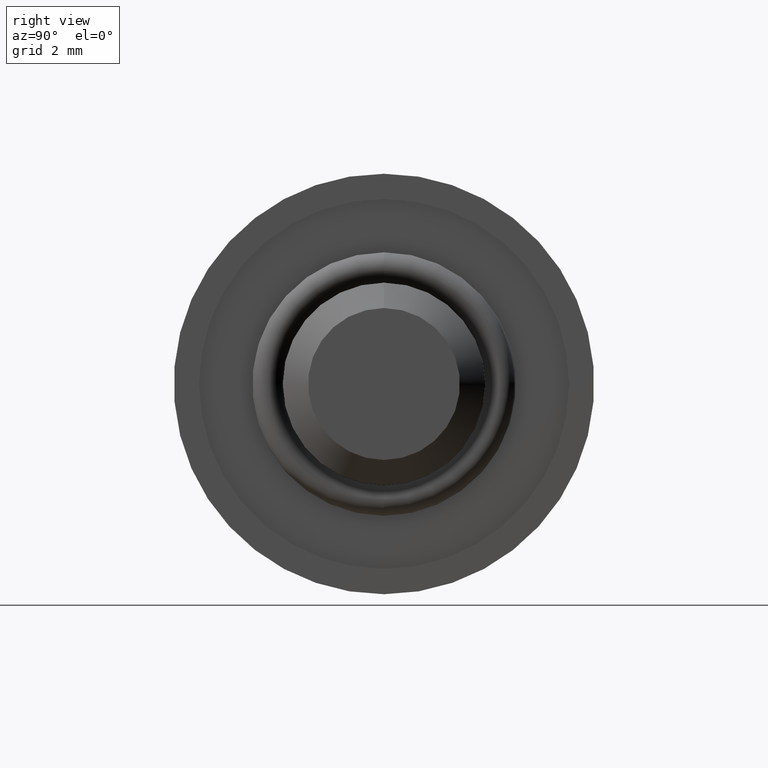
[diagram: clean part render]
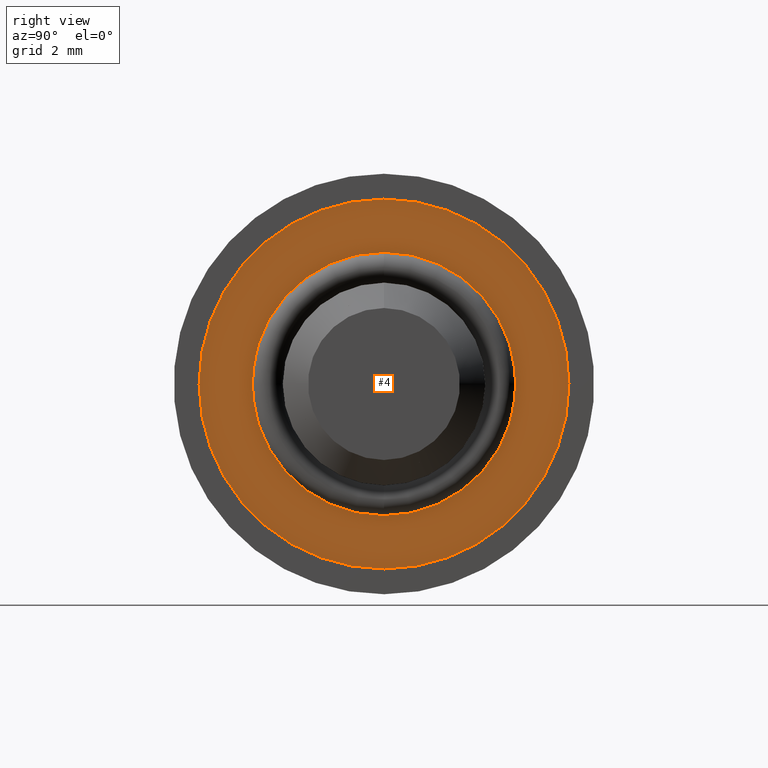
[diagram: same view with one face highlighted and labeled with its STEP entity id]
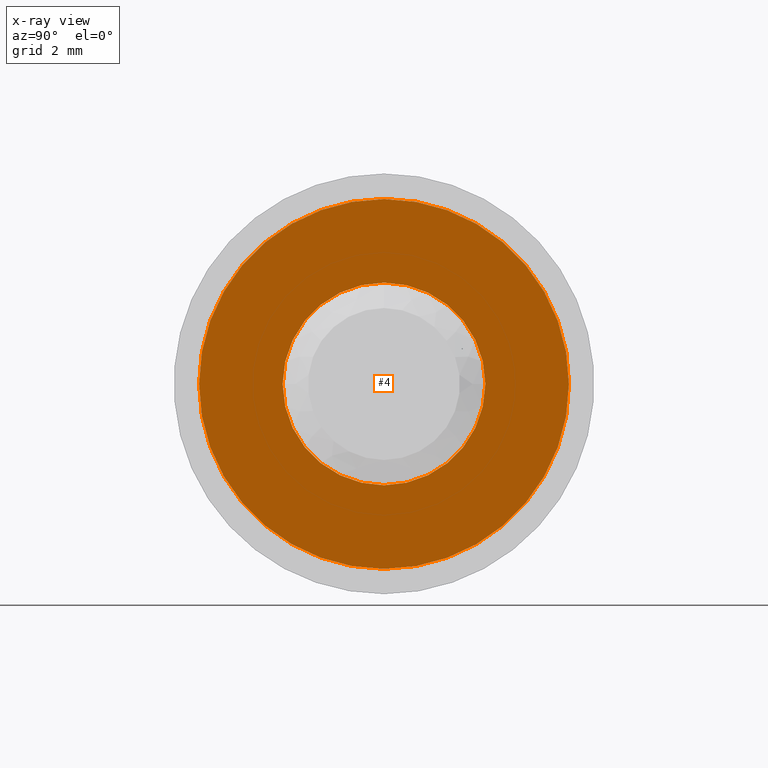
[diagram: x-ray of the same camera — body ghosted, the highlighted face saturated]
A machine part, right view. The second image highlights one B-rep face of the part: STEP entity #4.
The next image is the same camera in x-ray: the body ghosted, the highlighted face saturated — about 0% of this face is hidden behind the body in this view.
In plain terms, the highlighted planar face has unit normal (1, 0, 0).
Its self-contained STEP definition (entity closure, byte-faithful):
#4 = ADVANCED_FACE ( 'NONE', ( #805, #393 ), #191, .T. ) ;
#97 = VERTEX_POINT ( 'NONE', #989 ) ;
#167 = CARTESIAN_POINT ( 'NONE',  ( -0.2500000000000000000, 0.0000000000000000000, -3.649999999999999900 ) ) ;
#170 = DIRECTION ( 'NONE',  ( 0.0000000000000000000, 0.0000000000000000000, -1.000000000000000000 ) ) ;
#191 = PLANE ( 'NONE',  #637 ) ;
#210 = DIRECTION ( 'NONE',  ( 1.000000000000000000, 0.0000000000000000000, 0.0000000000000000000 ) ) ;
#218 = AXIS2_PLACEMENT_3D ( 'NONE', #828, #348, #649 ) ;
#219 = CARTESIAN_POINT ( 'NONE',  ( -0.2500000000000000000, 0.0000000000000000000, 0.0000000000000000000 ) ) ;
#251 = EDGE_CURVE ( 'NONE', #1066, #97, #574, .T. ) ;
#255 = AXIS2_PLACEMENT_3D ( 'NONE', #219, #278, #1110 ) ;
#260 = EDGE_LOOP ( 'NONE', ( #1077, #595 ) ) ;
#278 = DIRECTION ( 'NONE',  ( 1.000000000000000000, 0.0000000000000000000, 0.0000000000000000000 ) ) ;
#335 = CARTESIAN_POINT ( 'NONE',  ( -0.2500000000000000000, 4.469960816887839400E-016, 3.649999999999999900 ) ) ;
#348 = DIRECTION ( 'NONE',  ( 1.000000000000000000, 0.0000000000000000000, 0.0000000000000000000 ) ) ;
#393 = FACE_BOUND ( 'NONE', #1039, .T. ) ;
#479 = DIRECTION ( 'NONE',  ( 1.000000000000000000, 0.0000000000000000000, 0.0000000000000000000 ) ) ;
#482 = EDGE_CURVE ( 'NONE', #899, #938, #931, .T. ) ;
#485 = CIRCLE ( 'NONE', #942, 2.000000000000000000 ) ;
#505 = ORIENTED_EDGE ( 'NONE', *, *, #806, .F. ) ;
#564 = CARTESIAN_POINT ( 'NONE',  ( -0.2500000000000000000, 0.0000000000000000000, 0.0000000000000000000 ) ) ;
#574 = CIRCLE ( 'NONE', #218, 2.000000000000000000 ) ;
#587 = CIRCLE ( 'NONE', #255, 3.649999999999999900 ) ;
#595 = ORIENTED_EDGE ( 'NONE', *, *, #1032, .T. ) ;
#625 = DIRECTION ( 'NONE',  ( 1.000000000000000000, 0.0000000000000000000, 0.0000000000000000000 ) ) ;
#637 = AXIS2_PLACEMENT_3D ( 'NONE', #852, #479, #170 ) ;
#649 = DIRECTION ( 'NONE',  ( 0.0000000000000000000, 0.0000000000000000000, -1.000000000000000000 ) ) ;
#702 = AXIS2_PLACEMENT_3D ( 'NONE', #564, #625, #960 ) ;
#805 = FACE_OUTER_BOUND ( 'NONE', #260, .T. ) ;
#806 = EDGE_CURVE ( 'NONE', #97, #1066, #485, .T. ) ;
#828 = CARTESIAN_POINT ( 'NONE',  ( -0.2500000000000000000, 0.0000000000000000000, 0.0000000000000000000 ) ) ;
#852 = CARTESIAN_POINT ( 'NONE',  ( -0.2500000000000000000, 0.0000000000000000000, 0.0000000000000000000 ) ) ;
#887 = CARTESIAN_POINT ( 'NONE',  ( -0.2500000000000000000, 0.0000000000000000000, 2.000000000000000000 ) ) ;
#899 = VERTEX_POINT ( 'NONE', #167 ) ;
#931 = CIRCLE ( 'NONE', #702, 3.649999999999999900 ) ;
#938 = VERTEX_POINT ( 'NONE', #335 ) ;
#942 = AXIS2_PLACEMENT_3D ( 'NONE', #1187, #210, #1201 ) ;
#960 = DIRECTION ( 'NONE',  ( 0.0000000000000000000, 0.0000000000000000000, -1.000000000000000000 ) ) ;
#989 = CARTESIAN_POINT ( 'NONE',  ( -0.2500000000000000000, 2.449293598294706400E-016, -2.000000000000000000 ) ) ;
#1032 = EDGE_CURVE ( 'NONE', #938, #899, #587, .T. ) ;
#1039 = EDGE_LOOP ( 'NONE', ( #1106, #505 ) ) ;
#1066 = VERTEX_POINT ( 'NONE', #887 ) ;
#1077 = ORIENTED_EDGE ( 'NONE', *, *, #482, .T. ) ;
#1106 = ORIENTED_EDGE ( 'NONE', *, *, #251, .F. ) ;
#1110 = DIRECTION ( 'NONE',  ( 0.0000000000000000000, 0.0000000000000000000, -1.000000000000000000 ) ) ;
#1187 = CARTESIAN_POINT ( 'NONE',  ( -0.2500000000000000000, 0.0000000000000000000, 0.0000000000000000000 ) ) ;
#1201 = DIRECTION ( 'NONE',  ( 0.0000000000000000000, 0.0000000000000000000, -1.000000000000000000 ) ) ;